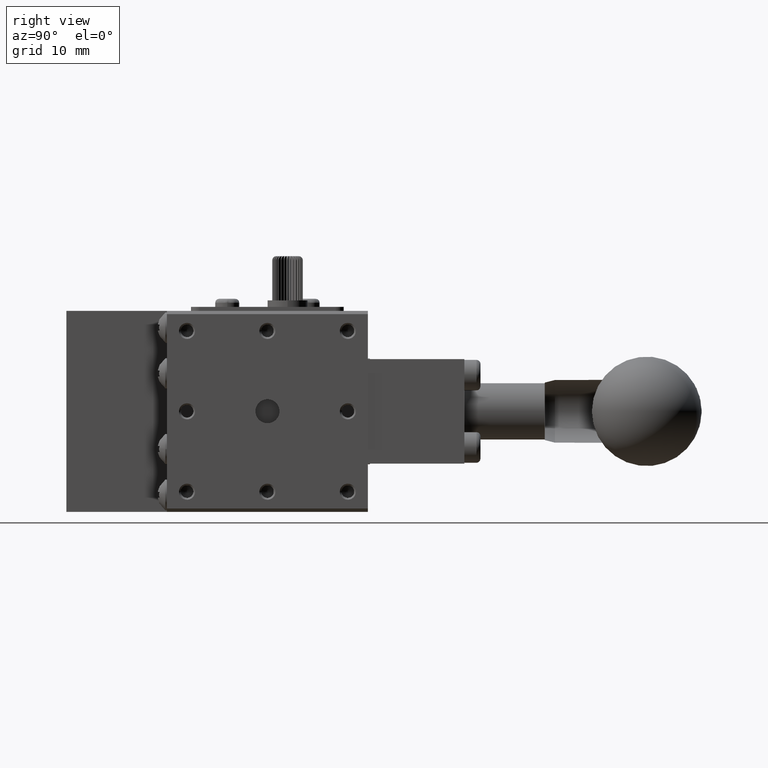
[diagram: clean part render]
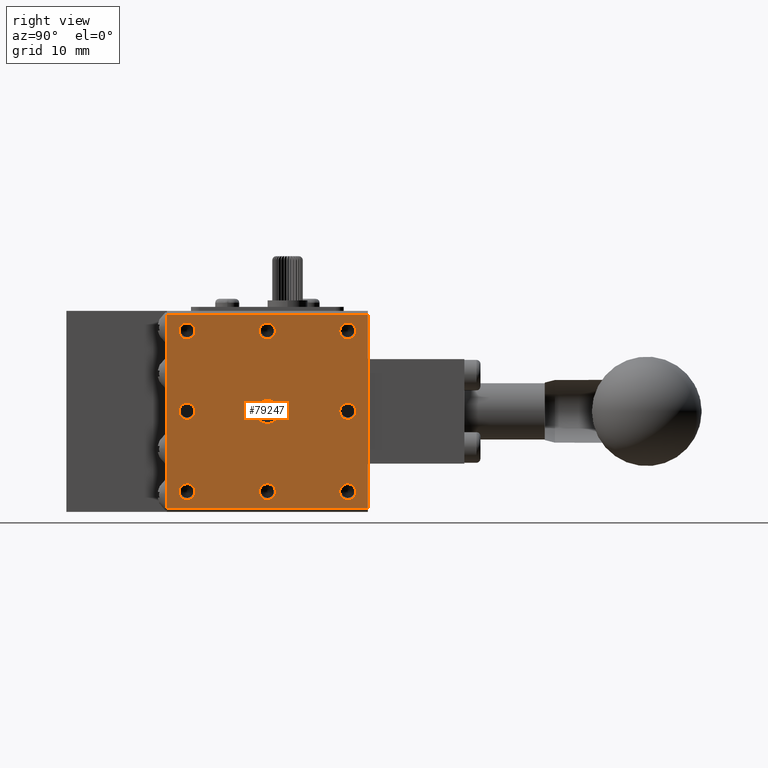
[diagram: same view with one face highlighted and labeled with its STEP entity id]
A machine part, right view. The second image highlights one B-rep face of the part: STEP entity #79247.
In plain terms, the highlighted planar face has unit normal (-1, 0, 0).
Its self-contained STEP definition (entity closure, byte-faithful):
#468 = AXIS2_PLACEMENT_3D ( 'NONE', #47197, #55137, #40177 ) ;
#1686 = VERTEX_POINT ( 'NONE', #78864 ) ;
#2957 = VECTOR ( 'NONE', #83680, 1000.000000000000000 ) ;
#3057 = CARTESIAN_POINT ( 'NONE',  ( 12.00000000000000000, 35.00000000000000000, -13.50000000002182787 ) ) ;
#3301 = AXIS2_PLACEMENT_3D ( 'NONE', #21788, #13357, #76956 ) ;
#3546 = ORIENTED_EDGE ( 'NONE', *, *, #74624, .F. ) ;
#3654 = ORIENTED_EDGE ( 'NONE', *, *, #24857, .F. ) ;
#3714 = CARTESIAN_POINT ( 'NONE',  ( 12.00000000000000000, 37.50000000000000711, -0.4099999999999999756 ) ) ;
#3755 = CIRCLE ( 'NONE', #70967, 0.9999999999740794010 ) ;
#4118 = FACE_BOUND ( 'NONE', #67169, .T. ) ;
#4787 = EDGE_LOOP ( 'NONE', ( #3654 ) ) ;
#4861 = DIRECTION ( 'NONE',  ( 0.000000000000000000, 0.000000000000000000, -1.000000000000000000 ) ) ;
#5046 = FACE_BOUND ( 'NONE', #61921, .T. ) ;
#5713 = ORIENTED_EDGE ( 'NONE', *, *, #58521, .F. ) ;
#7344 = VERTEX_POINT ( 'NONE', #51774 ) ;
#7376 = VERTEX_POINT ( 'NONE', #83667 ) ;
#7792 = CARTESIAN_POINT ( 'NONE',  ( 12.00000000000000000, 25.00000000000000000, -14.00000000000000000 ) ) ;
#9334 = ORIENTED_EDGE ( 'NONE', *, *, #22196, .F. ) ;
#10473 = DIRECTION ( 'NONE',  ( 0.000000000000000000, 0.000000000000000000, -1.000000000000000000 ) ) ;
#10727 = CARTESIAN_POINT ( 'NONE',  ( 12.00000000000000178, 37.50000000000000711, -24.58999999999999631 ) ) ;
#11452 = CARTESIAN_POINT ( 'NONE',  ( 12.00000000000000000, 15.00000000000000178, -23.49999999995588951 ) ) ;
#11582 = FACE_BOUND ( 'NONE', #80590, .T. ) ;
#12977 = CIRCLE ( 'NONE', #33920, 1.000000000021827207 ) ;
#13357 = DIRECTION ( 'NONE',  ( 1.000000000000000000, 0.000000000000000000, 0.000000000000000000 ) ) ;
#13444 = EDGE_LOOP ( 'NONE', ( #3546 ) ) ;
#15963 = AXIS2_PLACEMENT_3D ( 'NONE', #69845, #90398, #4861 ) ;
#16826 = DIRECTION ( 'NONE',  ( 1.000000000000000000, 0.000000000000000000, 0.000000000000000000 ) ) ;
#17268 = DIRECTION ( 'NONE',  ( 1.000000000000000000, 0.000000000000000000, 0.000000000000000000 ) ) ;
#17839 = EDGE_LOOP ( 'NONE', ( #5713 ) ) ;
#18021 = VERTEX_POINT ( 'NONE', #3057 ) ;
#18438 = CARTESIAN_POINT ( 'NONE',  ( 12.00000000005684342, 35.00000000000000000, -2.500000000000000000 ) ) ;
#20871 = LINE ( 'NONE', #49432, #92289 ) ;
#21159 = VECTOR ( 'NONE', #66883, 1000.000000000000000 ) ;
#21788 = CARTESIAN_POINT ( 'NONE',  ( 12.00000000000000000, 25.00000000000000000, -22.50000000000000000 ) ) ;
#22196 = EDGE_CURVE ( 'NONE', #7376, #62365, #40163, .T. ) ;
#23486 = FACE_OUTER_BOUND ( 'NONE', #32387, .T. ) ;
#23582 = EDGE_LOOP ( 'NONE', ( #31575 ) ) ;
#23684 = VERTEX_POINT ( 'NONE', #80675 ) ;
#23868 = CARTESIAN_POINT ( 'NONE',  ( 12.00000000000000000, 15.00000000000000178, -22.50000000000000000 ) ) ;
#24736 = EDGE_CURVE ( 'NONE', #69538, #69538, #77169, .T. ) ;
#24778 = EDGE_CURVE ( 'NONE', #34054, #34054, #32430, .T. ) ;
#24857 = EDGE_CURVE ( 'NONE', #1686, #1686, #56330, .T. ) ;
#25174 = DIRECTION ( 'NONE',  ( 0.000000000000000000, 0.000000000000000000, -1.000000000000000000 ) ) ;
#29389 = DIRECTION ( 'NONE',  ( 1.000000000000000000, 0.000000000000000000, 0.000000000000000000 ) ) ;
#30004 = DIRECTION ( 'NONE',  ( 0.000000000000000000, 0.000000000000000000, -1.000000000000000000 ) ) ;
#30498 = FACE_BOUND ( 'NONE', #45652, .T. ) ;
#31380 = CARTESIAN_POINT ( 'NONE',  ( 12.00000000000000000, 35.00000000000000000, -12.50000000000000000 ) ) ;
#31575 = ORIENTED_EDGE ( 'NONE', *, *, #51241, .F. ) ;
#31831 = LINE ( 'NONE', #3714, #21159 ) ;
#32094 = VERTEX_POINT ( 'NONE', #74586 ) ;
#32222 = FACE_BOUND ( 'NONE', #17839, .T. ) ;
#32387 = EDGE_LOOP ( 'NONE', ( #47233, #9334, #50664, #48637 ) ) ;
#32430 = CIRCLE ( 'NONE', #36908, 1.499999999999999556 ) ;
#33626 = PLANE ( 'NONE',  #468 ) ;
#33920 = AXIS2_PLACEMENT_3D ( 'NONE', #31380, #73405, #67814 ) ;
#34054 = VERTEX_POINT ( 'NONE', #7792 ) ;
#36079 = ORIENTED_EDGE ( 'NONE', *, *, #48813, .F. ) ;
#36654 = ORIENTED_EDGE ( 'NONE', *, *, #24736, .F. ) ;
#36908 = AXIS2_PLACEMENT_3D ( 'NONE', #75458, #61004, #10473 ) ;
#38144 = DIRECTION ( 'NONE',  ( 1.000000000000000000, 0.000000000000000000, 0.000000000000000000 ) ) ;
#39112 = CARTESIAN_POINT ( 'NONE',  ( 12.00000000005684342, 25.00000000000000000, -3.499999999974079401 ) ) ;
#39734 = EDGE_CURVE ( 'NONE', #62365, #70369, #40258, .T. ) ;
#40163 = LINE ( 'NONE', #81735, #77116 ) ;
#40177 = DIRECTION ( 'NONE',  ( 0.000000000000000000, 0.000000000000000000, 1.000000000000000000 ) ) ;
#40258 = LINE ( 'NONE', #90210, #2957 ) ;
#40665 = CIRCLE ( 'NONE', #3301, 0.9999999999558903951 ) ;
#40745 = EDGE_LOOP ( 'NONE', ( #36079 ) ) ;
#41102 = FACE_BOUND ( 'NONE', #23582, .T. ) ;
#42130 = CIRCLE ( 'NONE', #79379, 1.000000000021827207 ) ;
#43427 = EDGE_CURVE ( 'NONE', #7344, #7344, #83789, .T. ) ;
#43551 = AXIS2_PLACEMENT_3D ( 'NONE', #23868, #17268, #44938 ) ;
#44938 = DIRECTION ( 'NONE',  ( 0.000000000000000000, 0.000000000000000000, -1.000000000000000000 ) ) ;
#45652 = EDGE_LOOP ( 'NONE', ( #66970 ) ) ;
#46740 = FACE_BOUND ( 'NONE', #40745, .T. ) ;
#47197 = CARTESIAN_POINT ( 'NONE',  ( 12.00000000000000000, 37.50000000000000711, -0.4099999999999999756 ) ) ;
#47233 = ORIENTED_EDGE ( 'NONE', *, *, #39734, .F. ) ;
#48019 = AXIS2_PLACEMENT_3D ( 'NONE', #60691, #69084, #25174 ) ;
#48096 = CARTESIAN_POINT ( 'NONE',  ( 12.00000000005684342, 35.00000000000000000, -3.499999999974079401 ) ) ;
#48637 = ORIENTED_EDGE ( 'NONE', *, *, #64854, .F. ) ;
#48813 = EDGE_CURVE ( 'NONE', #32094, #32094, #42130, .T. ) ;
#49432 = CARTESIAN_POINT ( 'NONE',  ( 12.00000000000000000, 12.50000000000000000, -0.4099999999999999756 ) ) ;
#49505 = CIRCLE ( 'NONE', #43551, 0.9999999999558903951 ) ;
#49886 = CARTESIAN_POINT ( 'NONE',  ( 12.00000000000000000, 12.50000000000000000, -0.4099999999999998646 ) ) ;
#50664 = ORIENTED_EDGE ( 'NONE', *, *, #72427, .F. ) ;
#51241 = EDGE_CURVE ( 'NONE', #53157, #53157, #3755, .T. ) ;
#51774 = CARTESIAN_POINT ( 'NONE',  ( 12.00000000005684342, 15.00000000000000178, -3.499999999974079401 ) ) ;
#52220 = VERTEX_POINT ( 'NONE', #11452 ) ;
#53157 = VERTEX_POINT ( 'NONE', #39112 ) ;
#55137 = DIRECTION ( 'NONE',  ( -1.000000000000000000, 0.000000000000000000, 0.000000000000000000 ) ) ;
#56330 = CIRCLE ( 'NONE', #15963, 0.9999999999558903951 ) ;
#58521 = EDGE_CURVE ( 'NONE', #18021, #18021, #12977, .T. ) ;
#59004 = FACE_BOUND ( 'NONE', #13444, .T. ) ;
#60691 = CARTESIAN_POINT ( 'NONE',  ( 12.00000000005684342, 15.00000000000000178, -2.500000000000000000 ) ) ;
#61004 = DIRECTION ( 'NONE',  ( 1.000000000000000000, 0.000000000000000000, 0.000000000000000000 ) ) ;
#61921 = EDGE_LOOP ( 'NONE', ( #75446 ) ) ;
#62365 = VERTEX_POINT ( 'NONE', #10727 ) ;
#63952 = DIRECTION ( 'NONE',  ( 0.000000000000000000, 0.000000000000000000, -1.000000000000000000 ) ) ;
#64854 = EDGE_CURVE ( 'NONE', #70369, #83424, #20871, .T. ) ;
#66130 = CARTESIAN_POINT ( 'NONE',  ( 12.00000000000000000, 12.50000000000000000, -24.58999999999999986 ) ) ;
#66707 = AXIS2_PLACEMENT_3D ( 'NONE', #18438, #38144, #89937 ) ;
#66883 = DIRECTION ( 'NONE',  ( 0.000000000000000000, 1.000000000000000000, -0.000000000000000000 ) ) ;
#66970 = ORIENTED_EDGE ( 'NONE', *, *, #71739, .F. ) ;
#67169 = EDGE_LOOP ( 'NONE', ( #36654 ) ) ;
#67260 = DIRECTION ( 'NONE',  ( -0.000000000000000000, -0.000000000000000000, -1.000000000000000000 ) ) ;
#67814 = DIRECTION ( 'NONE',  ( 0.000000000000000000, 0.000000000000000000, -1.000000000000000000 ) ) ;
#69084 = DIRECTION ( 'NONE',  ( 1.000000000000000000, 0.000000000000000000, 0.000000000000000000 ) ) ;
#69538 = VERTEX_POINT ( 'NONE', #48096 ) ;
#69845 = CARTESIAN_POINT ( 'NONE',  ( 12.00000000000000000, 35.00000000000000000, -22.50000000000000000 ) ) ;
#70369 = VERTEX_POINT ( 'NONE', #66130 ) ;
#70951 = CARTESIAN_POINT ( 'NONE',  ( 12.00000000005684342, 25.00000000000000000, -2.500000000000000000 ) ) ;
#70967 = AXIS2_PLACEMENT_3D ( 'NONE', #70951, #29389, #63952 ) ;
#71739 = EDGE_CURVE ( 'NONE', #52220, #52220, #49505, .T. ) ;
#72427 = EDGE_CURVE ( 'NONE', #83424, #7376, #31831, .T. ) ;
#72475 = CARTESIAN_POINT ( 'NONE',  ( 12.00000000000000000, 15.00000000000000178, -12.50000000000000000 ) ) ;
#73405 = DIRECTION ( 'NONE',  ( 1.000000000000000000, 0.000000000000000000, 0.000000000000000000 ) ) ;
#74586 = CARTESIAN_POINT ( 'NONE',  ( 12.00000000000000000, 15.00000000000000178, -13.50000000002182787 ) ) ;
#74624 = EDGE_CURVE ( 'NONE', #23684, #23684, #40665, .T. ) ;
#75446 = ORIENTED_EDGE ( 'NONE', *, *, #24778, .F. ) ;
#75458 = CARTESIAN_POINT ( 'NONE',  ( 12.00000000000000000, 25.00000000000000000, -12.50000000000000000 ) ) ;
#76956 = DIRECTION ( 'NONE',  ( 0.000000000000000000, 0.000000000000000000, -1.000000000000000000 ) ) ;
#77116 = VECTOR ( 'NONE', #67260, 1000.000000000000000 ) ;
#77169 = CIRCLE ( 'NONE', #66707, 0.9999999999740794010 ) ;
#78864 = CARTESIAN_POINT ( 'NONE',  ( 12.00000000000000000, 35.00000000000000000, -23.49999999995588951 ) ) ;
#79247 = ADVANCED_FACE ( 'NONE', ( #23486, #11582, #46740, #30498, #59004, #82677, #32222, #4118, #41102, #5046 ), #33626, .F. ) ;
#79379 = AXIS2_PLACEMENT_3D ( 'NONE', #72475, #16826, #30004 ) ;
#80590 = EDGE_LOOP ( 'NONE', ( #87324 ) ) ;
#80675 = CARTESIAN_POINT ( 'NONE',  ( 12.00000000000000000, 25.00000000000000000, -23.49999999995588951 ) ) ;
#81735 = CARTESIAN_POINT ( 'NONE',  ( 12.00000000000000000, 37.50000000000000711, -0.4099999999999999756 ) ) ;
#82677 = FACE_BOUND ( 'NONE', #4787, .T. ) ;
#83424 = VERTEX_POINT ( 'NONE', #49886 ) ;
#83667 = CARTESIAN_POINT ( 'NONE',  ( 12.00000000000000000, 37.50000000000000711, -0.4099999999999998646 ) ) ;
#83680 = DIRECTION ( 'NONE',  ( -0.000000000000000000, -1.000000000000000000, 0.000000000000000000 ) ) ;
#83789 = CIRCLE ( 'NONE', #48019, 0.9999999999740794010 ) ;
#85371 = DIRECTION ( 'NONE',  ( 0.000000000000000000, 0.000000000000000000, 1.000000000000000000 ) ) ;
#87324 = ORIENTED_EDGE ( 'NONE', *, *, #43427, .F. ) ;
#89937 = DIRECTION ( 'NONE',  ( 0.000000000000000000, 0.000000000000000000, -1.000000000000000000 ) ) ;
#90210 = CARTESIAN_POINT ( 'NONE',  ( 12.00000000000000000, 37.50000000000000711, -24.58999999999999986 ) ) ;
#90398 = DIRECTION ( 'NONE',  ( 1.000000000000000000, 0.000000000000000000, 0.000000000000000000 ) ) ;
#92289 = VECTOR ( 'NONE', #85371, 1000.000000000000000 ) ;